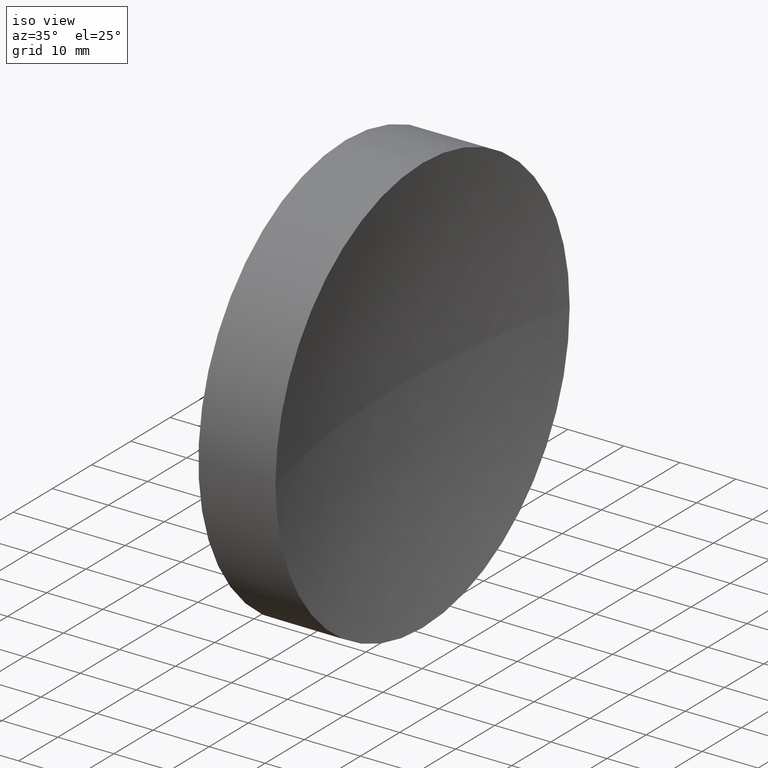
[diagram: clean part render]
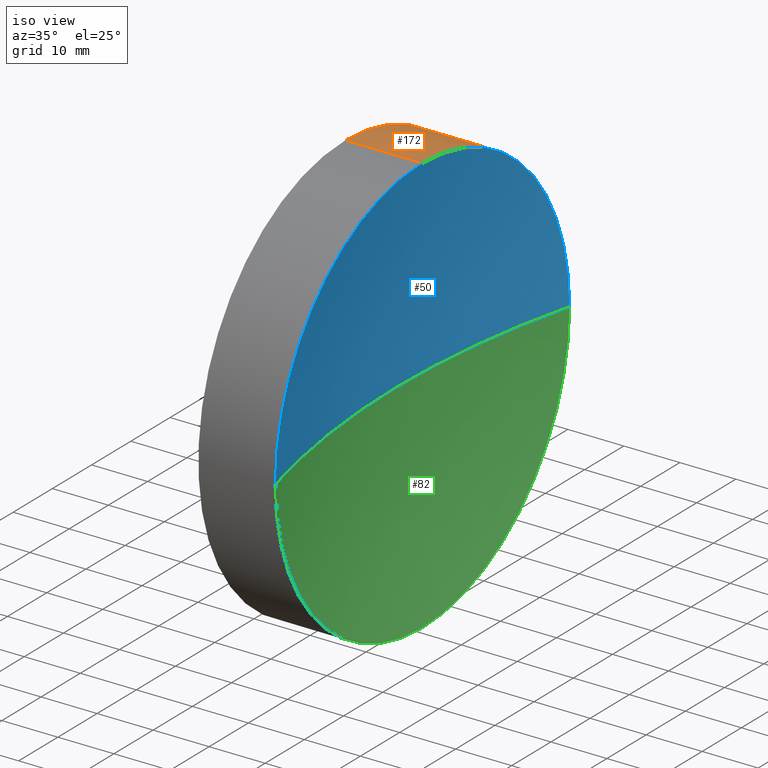
[diagram: same view with three faces highlighted in distinct colors, each labeled with its STEP entity id]
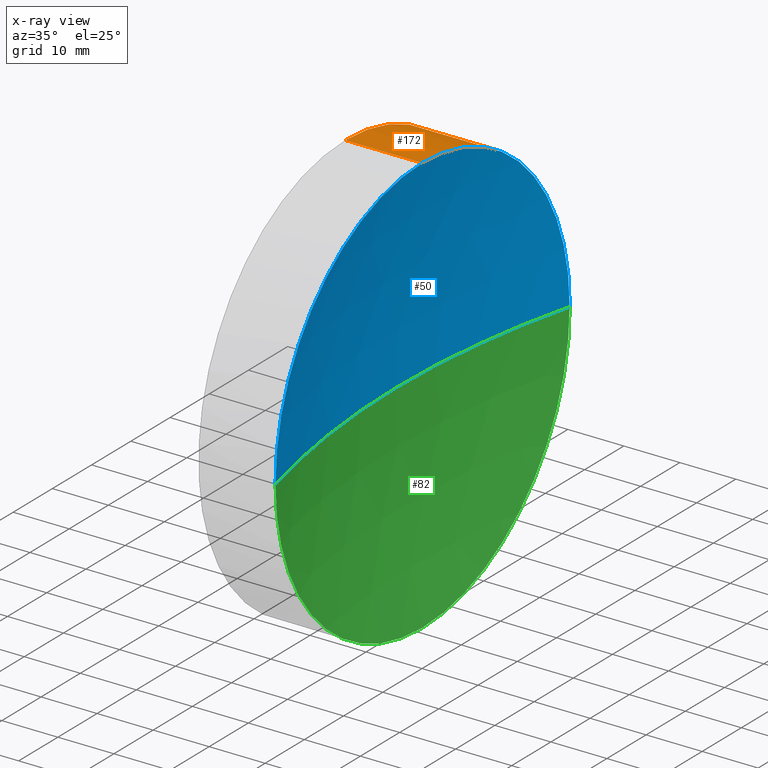
[diagram: x-ray of the same camera — body ghosted, the three highlighted faces saturated]
A machine part, iso view with three faces highlighted in distinct colors.
The next image is the same camera in x-ray (body ghosted, the three faces saturated) — at least one of them is partly hidden behind the body in this view.
Their STEP definitions:

[orange] entity #172 — the highlighted cylindrical surface (partial cylindrical patch) has radius 37.5 mm, axis along (-1, -0, -0).
#4 = EDGE_CURVE ( 'NONE', #15, #90, #48, .T. ) ;
#5 = EDGE_CURVE ( 'NONE', #90, #164, #162, .T. ) ;
#8 = CARTESIAN_POINT ( 'NONE',  ( 243.9627364224879800, 176.2560422467448700, 4.592425496802572000E-015 ) ) ;
#11 = DIRECTION ( 'NONE',  ( 0.0000000000000000000, 0.0000000000000000000, 1.000000000000000000 ) ) ;
#15 = VERTEX_POINT ( 'NONE', #8 ) ;
#19 = EDGE_CURVE ( 'NONE', #70, #15, #150, .T. ) ;
#25 = CARTESIAN_POINT ( 'NONE',  ( 217.9702860043302100, 138.7560422467448700, -37.50000000000000700 ) ) ;
#30 = CIRCLE ( 'NONE', #35, 37.50000000000000700 ) ;
#34 = ORIENTED_EDGE ( 'NONE', *, *, #103, .F. ) ;
#35 = AXIS2_PLACEMENT_3D ( 'NONE', #175, #111, #69 ) ;
#40 = CARTESIAN_POINT ( 'NONE',  ( 230.1996119052661200, 138.7560422467448700, -37.50000000000000700 ) ) ;
#43 = CARTESIAN_POINT ( 'NONE',  ( 217.9702860043302100, 138.7560422467448700, 0.0000000000000000000 ) ) ;
#48 = CIRCLE ( 'NONE', #135, 37.50000000000000700 ) ;
#52 = CARTESIAN_POINT ( 'NONE',  ( 217.9702860043302100, 138.7560422467448700, 37.50000000000000700 ) ) ;
#55 = VECTOR ( 'NONE', #110, 1000.000000000000000 ) ;
#65 = DIRECTION ( 'NONE',  ( -1.000000000000000000, -0.0000000000000000000, -0.0000000000000000000 ) ) ;
#69 = DIRECTION ( 'NONE',  ( 0.0000000000000000000, 0.0000000000000000000, 1.000000000000000000 ) ) ;
#70 = VERTEX_POINT ( 'NONE', #169 ) ;
#72 = ORIENTED_EDGE ( 'NONE', *, *, #4, .T. ) ;
#76 = CARTESIAN_POINT ( 'NONE',  ( 243.9627364224879800, 138.7560422467448700, 0.0000000000000000000 ) ) ;
#85 = DIRECTION ( 'NONE',  ( -1.000000000000000000, -0.0000000000000000000, -0.0000000000000000000 ) ) ;
#90 = VERTEX_POINT ( 'NONE', #109 ) ;
#92 = CYLINDRICAL_SURFACE ( 'NONE', #132, 37.50000000000000700 ) ;
#93 = VECTOR ( 'NONE', #65, 1000.000000000000000 ) ;
#103 = EDGE_CURVE ( 'NONE', #116, #164, #30, .T. ) ;
#106 = CARTESIAN_POINT ( 'NONE',  ( 243.9627364224879800, 138.7560422467448700, 0.0000000000000000000 ) ) ;
#109 = CARTESIAN_POINT ( 'NONE',  ( 243.9627364224879800, 138.7560422467448700, -37.50000000000000700 ) ) ;
#110 = DIRECTION ( 'NONE',  ( -1.000000000000000000, -0.0000000000000000000, -0.0000000000000000000 ) ) ;
#111 = DIRECTION ( 'NONE',  ( -1.000000000000000000, -0.0000000000000000000, -0.0000000000000000000 ) ) ;
#116 = VERTEX_POINT ( 'NONE', #156 ) ;
#117 = FACE_OUTER_BOUND ( 'NONE', #131, .T. ) ;
#121 = ORIENTED_EDGE ( 'NONE', *, *, #19, .T. ) ;
#124 = DIRECTION ( 'NONE',  ( -1.000000000000000000, -0.0000000000000000000, -0.0000000000000000000 ) ) ;
#131 = EDGE_LOOP ( 'NONE', ( #72, #158, #34, #157, #121 ) ) ;
#132 = AXIS2_PLACEMENT_3D ( 'NONE', #43, #85, #11 ) ;
#135 = AXIS2_PLACEMENT_3D ( 'NONE', #76, #168, #151 ) ;
#141 = AXIS2_PLACEMENT_3D ( 'NONE', #106, #124, #152 ) ;
#150 = CIRCLE ( 'NONE', #141, 37.50000000000000700 ) ;
#151 = DIRECTION ( 'NONE',  ( 0.0000000000000000000, 0.0000000000000000000, 1.000000000000000000 ) ) ;
#152 = DIRECTION ( 'NONE',  ( 0.0000000000000000000, 0.0000000000000000000, 1.000000000000000000 ) ) ;
#156 = CARTESIAN_POINT ( 'NONE',  ( 230.1996119052661200, 138.7560422467448700, 37.50000000000000700 ) ) ;
#157 = ORIENTED_EDGE ( 'NONE', *, *, #179, .F. ) ;
#158 = ORIENTED_EDGE ( 'NONE', *, *, #5, .T. ) ;
#162 = LINE ( 'NONE', #25, #93 ) ;
#164 = VERTEX_POINT ( 'NONE', #40 ) ;
#168 = DIRECTION ( 'NONE',  ( -1.000000000000000000, -0.0000000000000000000, -0.0000000000000000000 ) ) ;
#169 = CARTESIAN_POINT ( 'NONE',  ( 243.9627364224879800, 138.7560422467448700, 37.50000000000000700 ) ) ;
#172 = ADVANCED_FACE ( 'NONE', ( #117 ), #92, .T. ) ;
#173 = LINE ( 'NONE', #52, #55 ) ;
#175 = CARTESIAN_POINT ( 'NONE',  ( 230.1996119052661200, 138.7560422467448700, 0.0000000000000000000 ) ) ;
#179 = EDGE_CURVE ( 'NONE', #70, #116, #173, .T. ) ;

[blue] entity #50 — the highlighted spherical surface has radius 150 mm.
#8 = CARTESIAN_POINT ( 'NONE',  ( 243.9627364224879800, 176.2560422467448700, 4.592425496802572000E-015 ) ) ;
#12 = SPHERICAL_SURFACE ( 'NONE', #14, 150.0000000000000300 ) ;
#14 = AXIS2_PLACEMENT_3D ( 'NONE', #39, #63, #107 ) ;
#15 = VERTEX_POINT ( 'NONE', #8 ) ;
#16 = DIRECTION ( 'NONE',  ( 0.0000000000000000000, -1.000000000000000000, -1.224646799147353200E-016 ) ) ;
#17 = AXIS2_PLACEMENT_3D ( 'NONE', #41, #185, #16 ) ;
#19 = EDGE_CURVE ( 'NONE', #70, #15, #150, .T. ) ;
#22 = FACE_OUTER_BOUND ( 'NONE', #133, .T. ) ;
#28 = CARTESIAN_POINT ( 'NONE',  ( 389.1996119052661200, 138.7560422467449000, 0.0000000000000000000 ) ) ;
#39 = CARTESIAN_POINT ( 'NONE',  ( 389.1996119052661200, 138.7560422467449000, 0.0000000000000000000 ) ) ;
#41 = CARTESIAN_POINT ( 'NONE',  ( 389.1996119052661200, 138.7560422467449000, 0.0000000000000000000 ) ) ;
#44 = ORIENTED_EDGE ( 'NONE', *, *, #122, .T. ) ;
#47 = EDGE_CURVE ( 'NONE', #113, #70, #136, .T. ) ;
#50 = ADVANCED_FACE ( 'NONE', ( #22 ), #12, .F. ) ;
#53 = DIRECTION ( 'NONE',  ( 0.0000000000000000000, 0.0000000000000000000, -1.000000000000000000 ) ) ;
#56 = VERTEX_POINT ( 'NONE', #67 ) ;
#59 = AXIS2_PLACEMENT_3D ( 'NONE', #138, #97, #78 ) ;
#62 = ORIENTED_EDGE ( 'NONE', *, *, #47, .F. ) ;
#63 = DIRECTION ( 'NONE',  ( 0.0000000000000000000, 0.0000000000000000000, 1.000000000000000000 ) ) ;
#67 = CARTESIAN_POINT ( 'NONE',  ( 239.1996119052661200, 138.7560422467449000, 0.0000000000000000000 ) ) ;
#70 = VERTEX_POINT ( 'NONE', #169 ) ;
#78 = DIRECTION ( 'NONE',  ( 0.0000000000000000000, 0.0000000000000000000, 1.000000000000000000 ) ) ;
#81 = CARTESIAN_POINT ( 'NONE',  ( 243.9627364224879800, 101.2560422467449000, 0.0000000000000000000 ) ) ;
#89 = CIRCLE ( 'NONE', #17, 150.0000000000000300 ) ;
#97 = DIRECTION ( 'NONE',  ( -1.000000000000000000, -0.0000000000000000000, -0.0000000000000000000 ) ) ;
#106 = CARTESIAN_POINT ( 'NONE',  ( 243.9627364224879800, 138.7560422467448700, 0.0000000000000000000 ) ) ;
#107 = DIRECTION ( 'NONE',  ( 0.0000000000000000000, -1.000000000000000000, 0.0000000000000000000 ) ) ;
#113 = VERTEX_POINT ( 'NONE', #81 ) ;
#120 = CIRCLE ( 'NONE', #137, 150.0000000000000300 ) ;
#122 = EDGE_CURVE ( 'NONE', #113, #56, #120, .T. ) ;
#124 = DIRECTION ( 'NONE',  ( -1.000000000000000000, -0.0000000000000000000, -0.0000000000000000000 ) ) ;
#129 = DIRECTION ( 'NONE',  ( -1.000000000000000000, 0.0000000000000000000, 0.0000000000000000000 ) ) ;
#133 = EDGE_LOOP ( 'NONE', ( #177, #165, #62, #44 ) ) ;
#136 = CIRCLE ( 'NONE', #59, 37.50000000000000700 ) ;
#137 = AXIS2_PLACEMENT_3D ( 'NONE', #28, #53, #129 ) ;
#138 = CARTESIAN_POINT ( 'NONE',  ( 243.9627364224879800, 138.7560422467448700, 0.0000000000000000000 ) ) ;
#141 = AXIS2_PLACEMENT_3D ( 'NONE', #106, #124, #152 ) ;
#142 = EDGE_CURVE ( 'NONE', #15, #56, #89, .T. ) ;
#150 = CIRCLE ( 'NONE', #141, 37.50000000000000700 ) ;
#152 = DIRECTION ( 'NONE',  ( 0.0000000000000000000, 0.0000000000000000000, 1.000000000000000000 ) ) ;
#165 = ORIENTED_EDGE ( 'NONE', *, *, #19, .F. ) ;
#169 = CARTESIAN_POINT ( 'NONE',  ( 243.9627364224879800, 138.7560422467448700, 37.50000000000000700 ) ) ;
#177 = ORIENTED_EDGE ( 'NONE', *, *, #142, .F. ) ;
#185 = DIRECTION ( 'NONE',  ( 0.0000000000000000000, -1.224646799147353200E-016, 1.000000000000000000 ) ) ;

[green] entity #82 — the highlighted spherical surface has radius 150 mm.
#2 = EDGE_LOOP ( 'NONE', ( #3, #33, #104, #71 ) ) ;
#3 = ORIENTED_EDGE ( 'NONE', *, *, #4, .F. ) ;
#4 = EDGE_CURVE ( 'NONE', #15, #90, #48, .T. ) ;
#8 = CARTESIAN_POINT ( 'NONE',  ( 243.9627364224879800, 176.2560422467448700, 4.592425496802572000E-015 ) ) ;
#15 = VERTEX_POINT ( 'NONE', #8 ) ;
#16 = DIRECTION ( 'NONE',  ( 0.0000000000000000000, -1.000000000000000000, -1.224646799147353200E-016 ) ) ;
#17 = AXIS2_PLACEMENT_3D ( 'NONE', #41, #185, #16 ) ;
#28 = CARTESIAN_POINT ( 'NONE',  ( 389.1996119052661200, 138.7560422467449000, 0.0000000000000000000 ) ) ;
#33 = ORIENTED_EDGE ( 'NONE', *, *, #142, .T. ) ;
#41 = CARTESIAN_POINT ( 'NONE',  ( 389.1996119052661200, 138.7560422467449000, 0.0000000000000000000 ) ) ;
#48 = CIRCLE ( 'NONE', #135, 37.50000000000000700 ) ;
#49 = CARTESIAN_POINT ( 'NONE',  ( 389.1996119052661200, 138.7560422467449000, 0.0000000000000000000 ) ) ;
#53 = DIRECTION ( 'NONE',  ( 0.0000000000000000000, 0.0000000000000000000, -1.000000000000000000 ) ) ;
#56 = VERTEX_POINT ( 'NONE', #67 ) ;
#67 = CARTESIAN_POINT ( 'NONE',  ( 239.1996119052661200, 138.7560422467449000, 0.0000000000000000000 ) ) ;
#71 = ORIENTED_EDGE ( 'NONE', *, *, #148, .F. ) ;
#74 = SPHERICAL_SURFACE ( 'NONE', #77, 150.0000000000000300 ) ;
#76 = CARTESIAN_POINT ( 'NONE',  ( 243.9627364224879800, 138.7560422467448700, 0.0000000000000000000 ) ) ;
#77 = AXIS2_PLACEMENT_3D ( 'NONE', #49, #184, #170 ) ;
#81 = CARTESIAN_POINT ( 'NONE',  ( 243.9627364224879800, 101.2560422467449000, 0.0000000000000000000 ) ) ;
#82 = ADVANCED_FACE ( 'NONE', ( #99 ), #74, .F. ) ;
#83 = DIRECTION ( 'NONE',  ( 0.0000000000000000000, 0.0000000000000000000, 1.000000000000000000 ) ) ;
#89 = CIRCLE ( 'NONE', #17, 150.0000000000000300 ) ;
#90 = VERTEX_POINT ( 'NONE', #109 ) ;
#99 = FACE_OUTER_BOUND ( 'NONE', #2, .T. ) ;
#104 = ORIENTED_EDGE ( 'NONE', *, *, #122, .F. ) ;
#108 = DIRECTION ( 'NONE',  ( -1.000000000000000000, -0.0000000000000000000, -0.0000000000000000000 ) ) ;
#109 = CARTESIAN_POINT ( 'NONE',  ( 243.9627364224879800, 138.7560422467448700, -37.50000000000000700 ) ) ;
#113 = VERTEX_POINT ( 'NONE', #81 ) ;
#119 = AXIS2_PLACEMENT_3D ( 'NONE', #140, #108, #83 ) ;
#120 = CIRCLE ( 'NONE', #137, 150.0000000000000300 ) ;
#122 = EDGE_CURVE ( 'NONE', #113, #56, #120, .T. ) ;
#129 = DIRECTION ( 'NONE',  ( -1.000000000000000000, 0.0000000000000000000, 0.0000000000000000000 ) ) ;
#135 = AXIS2_PLACEMENT_3D ( 'NONE', #76, #168, #151 ) ;
#137 = AXIS2_PLACEMENT_3D ( 'NONE', #28, #53, #129 ) ;
#140 = CARTESIAN_POINT ( 'NONE',  ( 243.9627364224879800, 138.7560422467448700, 0.0000000000000000000 ) ) ;
#142 = EDGE_CURVE ( 'NONE', #15, #56, #89, .T. ) ;
#148 = EDGE_CURVE ( 'NONE', #90, #113, #155, .T. ) ;
#151 = DIRECTION ( 'NONE',  ( 0.0000000000000000000, 0.0000000000000000000, 1.000000000000000000 ) ) ;
#155 = CIRCLE ( 'NONE', #119, 37.50000000000000700 ) ;
#168 = DIRECTION ( 'NONE',  ( -1.000000000000000000, -0.0000000000000000000, -0.0000000000000000000 ) ) ;
#170 = DIRECTION ( 'NONE',  ( 0.0000000000000000000, -1.000000000000000000, 0.0000000000000000000 ) ) ;
#184 = DIRECTION ( 'NONE',  ( 0.0000000000000000000, 0.0000000000000000000, 1.000000000000000000 ) ) ;
#185 = DIRECTION ( 'NONE',  ( 0.0000000000000000000, -1.224646799147353200E-016, 1.000000000000000000 ) ) ;